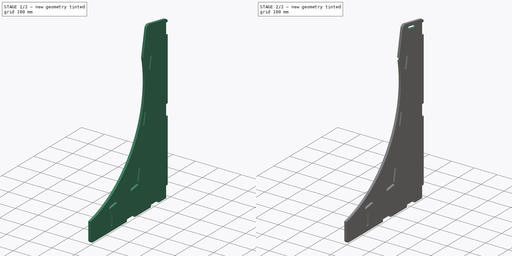
[diagram: build sequence overview — one tinted view per stage of 2, left to right]
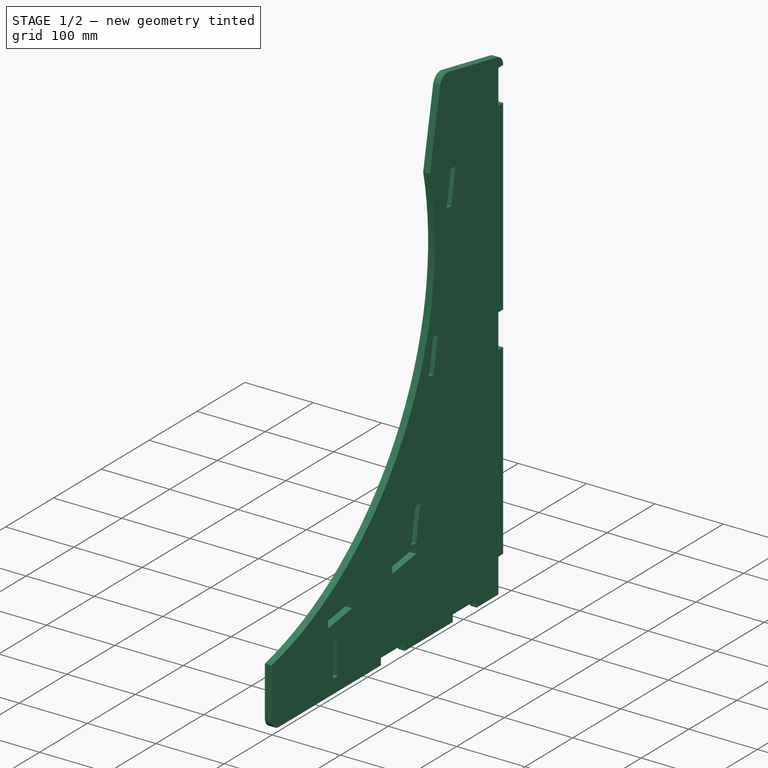
[diagram: stage 1 of 2 — iso view after this stage's code; geometry added in this stage tinted green]
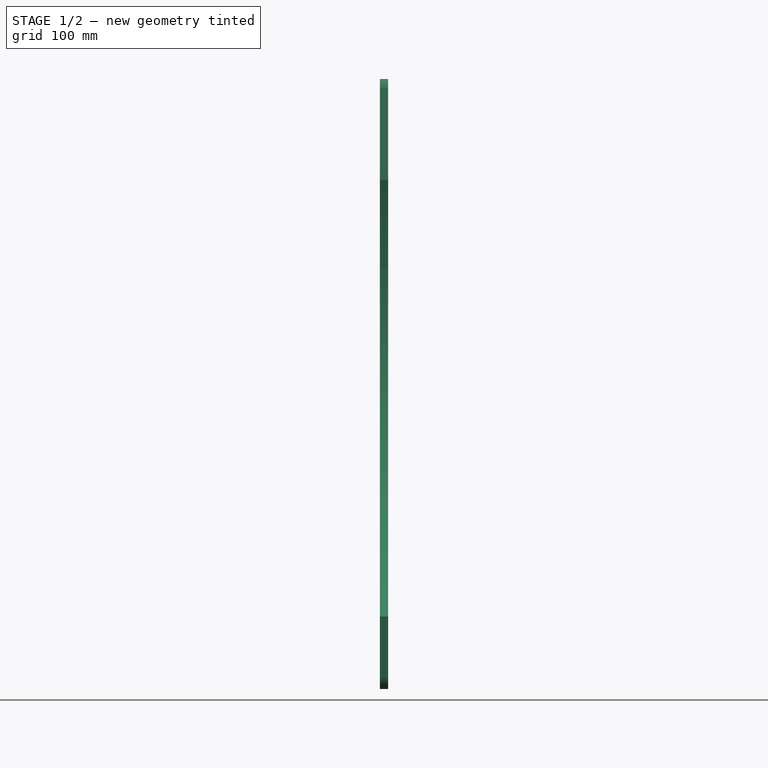
[diagram: stage 1 of 2 — front view after this stage's code; geometry added in this stage tinted green]
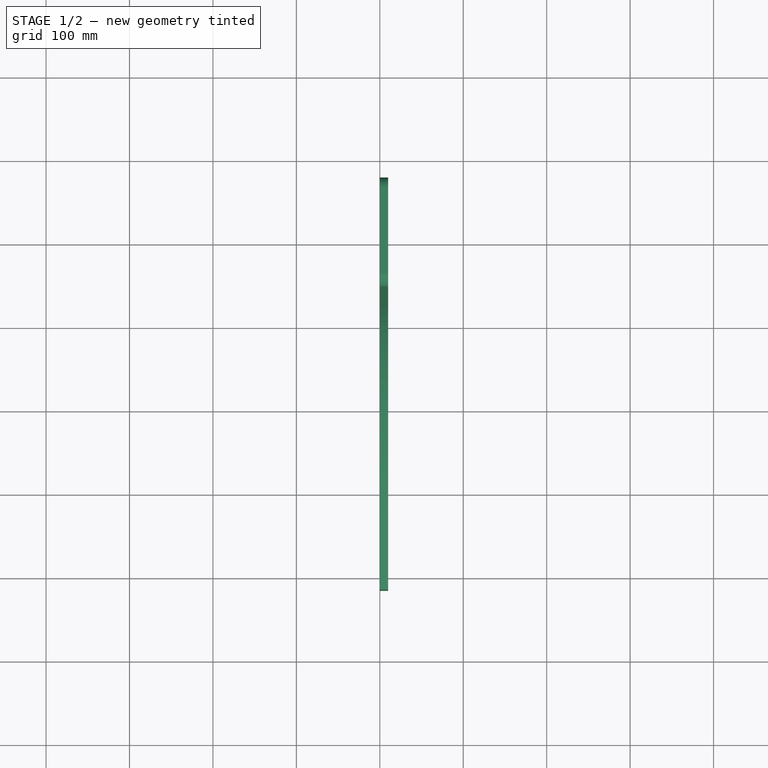
[diagram: stage 1 of 2 — top view after this stage's code; geometry added in this stage tinted green]
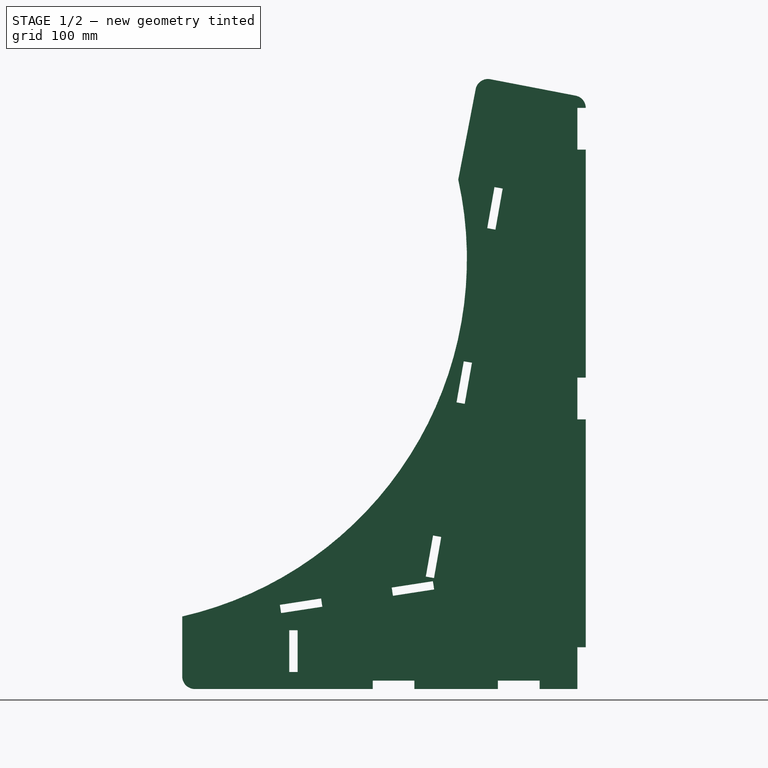
[diagram: stage 1 of 2 — right view after this stage's code; geometry added in this stage tinted green]
FCSTD DOCUMENT  (FreeCAD 0.16R)
Label: panneau_droit
License: All rights reserved
LicenseURL: http://en.wikipedia.org/wiki/All_rights_reserved
objects: Sketcher::SketchObject×3, PartDesign::Pocket×2, PartDesign::Pad×1
note: 9 computed .brp shape members not serialized (recipe doc carries the construction recipe); baked Part::Feature solids carry a one-line shape summary decoded from their .brp

FEATURE [Sketcher::SketchObject] Sketch
  Placement = pos=(0,0,0) rot=(0.57735,0.57735,0.57735;2.0944rad)
  sketch-geometry (19):
    g0: LineSegment StartX=0 StartY=0 StartZ=0 EndX=458.57 EndY=0 EndZ=0
    g1: LineSegment StartX=456.407 StartY=711.13 StartZ=0 EndX=354.229 EndY=730.81 EndZ=0
    g2: LineSegment StartX=336.663 StartY=718.918 StartZ=0 EndX=315.778 EndY=610.481 EndZ=0
    g3: LineSegment StartX=-15 StartY=15 StartZ=0 EndX=-15 EndY=86.92 EndZ=0
    g4: ArcOfCircle CenterX=2e-12 CenterY=15 CenterZ=0 NormalX=0 NormalY=0 NormalZ=1 Radius=15 StartAngle=3.14159 EndAngle=4.71239
    g5: ArcOfCircle CenterX=453.57 CenterY=696.401 CenterZ=0 NormalX=0 NormalY=0 NormalZ=1 Radius=15 StartAngle=0 EndAngle=1.38052
    g6: ArcOfCircle CenterX=351.392 CenterY=716.081 CenterZ=0 NormalX=0 NormalY=0 NormalZ=1 Radius=15 StartAngle=1.38052 EndAngle=2.95132
    g7: ArcOfCircle CenterX=-113.552 CenterY=515.454 CenterZ=0 NormalX=0 NormalY=0 NormalZ=1 Radius=439.72 StartAngle=4.93843 EndAngle=6.50101
    g8: LineSegment [constr] StartX=567.587 StartY=0 StartZ=0 EndX=567.587 EndY=696 EndZ=0
    g9: LineSegment StartX=468.57 StartY=696.401 StartZ=0 EndX=458.57 EndY=696.401 EndZ=0
    g10: LineSegment StartX=458.57 StartY=696.401 StartZ=0 EndX=458.57 EndY=646.401 EndZ=0
    g11: LineSegment StartX=458.57 StartY=646.401 StartZ=0 EndX=468.57 EndY=646.401 EndZ=0
    g12: LineSegment StartX=468.57 StartY=373.2 StartZ=0 EndX=458.57 EndY=373.2 EndZ=0
    g13: LineSegment StartX=458.57 StartY=373.2 StartZ=0 EndX=458.57 EndY=323.2 EndZ=0
    g14: LineSegment StartX=458.57 StartY=323.2 StartZ=0 EndX=468.57 EndY=323.2 EndZ=0
    g15: LineSegment StartX=468.57 StartY=50 StartZ=0 EndX=458.57 EndY=50 EndZ=0
    g16: LineSegment StartX=458.57 StartY=50 StartZ=0 EndX=458.57 EndY=0 EndZ=0
    g17: LineSegment StartX=468.57 StartY=646.401 StartZ=0 EndX=468.57 EndY=373.2 EndZ=0
    g18: LineSegment StartX=468.57 StartY=323.2 StartZ=0 EndX=468.57 EndY=50 EndZ=0
  constraints (56):
    c: Vertical(g3)
    c: Tangent(g0,g4) = -1.5708
    c: Tangent(g3,g4) = 1.5708
    c: Tangent(g1,g5) = -1.5708
    c: Tangent(g1,g6) = -1.5708
    c: Tangent(g2,g6) = -1.5708
    c: DistanceX(g3,g0) = 473.57
    c: Equal(g4,g6)
    c: Equal(g6,g5)
    c: Horizontal(g0)
    c: DistanceY(g0,g1) = 711.13
    c: Distance(g2) = 110.43
    c: Coincident(g7,g2)
    c: Coincident(g7,g3)
    c: Distance(g3) = 71.92
    c: Angle(g2,g1) = 1.5708
    c: Radius(g6) = 15
    c: Coincident(g0,g-1)
    c: DistanceY(g0,g1) = 730.81
    c: PointOnObject(g8,g0)
    c: Vertical(g8)
    c: Distance(g8) = 696
    c: Coincident(g9,g10)
    c: Coincident(g10,g11)
    c: Horizontal(g9)
    c: Horizontal(g11)
    c: Vertical(g10)
    c: Coincident(g9,g5)
    c: Coincident(g12,g13)
    c: Coincident(g13,g14)
    c: Horizontal(g12)
    c: Horizontal(g14)
    c: Vertical(g13)
    c: Coincident(g15,g16)
    c: Horizontal(g15)
    c: Vertical(g16)
    c: Coincident(g16,g0)
    c: Equal(g9,g11)
    c: Equal(g11,g12)
    c: Equal(g12,g14)
    c: Coincident(g17,g11)
    c: Coincident(g17,g12)
    c: Vertical(g17)
    c: Coincident(g18,g14)
    c: Coincident(g18,g15)
    c: Vertical(g18)
    c: Equal(g10,g13)
    c: Equal(g13,g16)
    c: DistanceY(g16,g16) = 50
    c: Equal(g18,g17)
    c: Equal(g15,g14)
    c: Equal(g14,g12)
    c: Equal(g12,g11)
    c: Equal(g11,g9)
    c: Angle(g1,g17) = 1.76107
    c: DistanceX(g9,g9) = 10
FEATURE [PartDesign::Pad] Pad
  Length = 10
  Length2 = 100
  Placement = pos=(0,0,0) rot=(0.57735,0.57735,0.57735;2.0944rad)
  Sketch = -> Sketch
  Type = 0
FEATURE [Sketcher::SketchObject] Sketch001
  Placement = pos=(10,0,0) rot=(0.57735,0.57735,0.57735;2.0944rad)
  Support = -> Pad [Face20]
  sketch-geometry (44):
    g0: GeomPoint [constr] X=318.024 Y=368.131 Z=0
    g1: LineSegment StartX=276.869 StartY=134.731 StartZ=0 EndX=285.552 EndY=183.972 EndZ=0
    g2: LineSegment StartX=285.552 StartY=183.972 StartZ=0 EndX=295.4 EndY=182.235 EndZ=0
    g3: LineSegment StartX=295.4 StartY=182.235 StartZ=0 EndX=286.718 EndY=132.995 EndZ=0
    g4: LineSegment StartX=286.718 StartY=132.995 StartZ=0 EndX=276.869 EndY=134.731 EndZ=0
    g5: LineSegment StartX=313.683 StartY=343.51 StartZ=0 EndX=322.365 EndY=392.751 EndZ=0
    g6: LineSegment StartX=322.365 StartY=392.751 StartZ=0 EndX=332.213 EndY=391.014 EndZ=0
    g7: LineSegment StartX=332.213 StartY=391.014 StartZ=0 EndX=323.531 EndY=341.774 EndZ=0
    g8: LineSegment StartX=323.531 StartY=341.774 StartZ=0 EndX=313.683 EndY=343.51 EndZ=0
    g9: LineSegment StartX=359.179 StartY=601.53 StartZ=0 EndX=350.496 EndY=552.29 EndZ=0
    g10: LineSegment StartX=350.496 StartY=552.29 StartZ=0 EndX=360.344 EndY=550.553 EndZ=0
    g11: LineSegment StartX=360.344 StartY=550.553 StartZ=0 EndX=369.027 EndY=599.794 EndZ=0
    g12: LineSegment StartX=369.027 StartY=599.794 StartZ=0 EndX=359.179 EndY=601.53 EndZ=0
    g13: LineSegment [constr] StartX=276.869 StartY=134.731 StartZ=0 EndX=359.179 EndY=601.53 EndZ=0
    g14: GeomPoint [constr] X=318.024 Y=368.131 Z=0
    g15: LineSegment [constr] StartX=318.024 StartY=368.131 StartZ=0 EndX=318.024 EndY=0 EndZ=0
    g16: GeomPoint [constr] X=318.024 Y=368.131 Z=0
    g17: LineSegment StartX=101.965 StartY=100.868 StartZ=0 EndX=151.379 EndY=108.5 EndZ=0
    g18: LineSegment StartX=151.379 StartY=108.5 StartZ=0 EndX=152.906 EndY=98.6168 EndZ=0
    g19: LineSegment StartX=152.906 StartY=98.6168 StartZ=0 EndX=103.491 EndY=90.985 EndZ=0
    g20: LineSegment StartX=103.491 StartY=90.985 StartZ=0 EndX=101.965 EndY=100.868 EndZ=0
    g21: LineSegment StartX=235.976 StartY=121.565 StartZ=0 EndX=285.39 EndY=129.197 EndZ=0
    g22: LineSegment StartX=285.39 StartY=129.197 StartZ=0 EndX=286.917 EndY=119.314 EndZ=0
    g23: LineSegment StartX=286.917 StartY=119.314 StartZ=0 EndX=237.503 EndY=111.682 EndZ=0
    g24: LineSegment StartX=237.503 StartY=111.682 StartZ=0 EndX=235.976 EndY=121.565 EndZ=0
    g25: LineSegment [constr] StartX=101.965 StartY=100.868 StartZ=0 EndX=285.39 EndY=129.197 EndZ=0
    g26: GeomPoint [constr] X=193.678 Y=115.032 Z=0
    g27: LineSegment [constr] StartX=193.678 StartY=115.032 StartZ=0 EndX=193.678 EndY=0 EndZ=0
    g28: LineSegment [constr] StartX=113.247 StartY=90.7 StartZ=0 EndX=113.247 EndY=0 EndZ=0
    g29: LineSegment StartX=113.247 StartY=20.35 StartZ=0 EndX=113.247 EndY=70.35 EndZ=0
    g30: LineSegment StartX=113.247 StartY=70.35 StartZ=0 EndX=123.247 EndY=70.35 EndZ=0
    g31: LineSegment StartX=123.247 StartY=70.35 StartZ=0 EndX=123.247 EndY=20.35 EndZ=0
    g32: LineSegment StartX=123.247 StartY=20.35 StartZ=0 EndX=113.247 EndY=20.35 EndZ=0
    g33: GeomPoint [constr] X=113.247 Y=45.35 Z=0
    g34: GeomPoint [constr] X=113.247 Y=45.35 Z=0
    g35: LineSegment [constr] StartX=113.247 StartY=90.7 StartZ=0 EndX=123.247 EndY=90.7 EndZ=0
    g36: LineSegment StartX=213.247 StartY=0 StartZ=0 EndX=263.247 EndY=0 EndZ=0
    g37: LineSegment StartX=263.247 StartY=0 StartZ=0 EndX=263.247 EndY=10 EndZ=0
    g38: LineSegment StartX=263.247 StartY=10 StartZ=0 EndX=213.247 EndY=10 EndZ=0
    g39: LineSegment StartX=213.247 StartY=10 StartZ=0 EndX=213.247 EndY=0 EndZ=0
    g40: LineSegment StartX=363.247 StartY=0 StartZ=0 EndX=413.247 EndY=0 EndZ=0
    g41: LineSegment StartX=413.247 StartY=0 StartZ=0 EndX=413.247 EndY=10 EndZ=0
    g42: LineSegment StartX=413.247 StartY=10 StartZ=0 EndX=363.247 EndY=10 EndZ=0
    g43: LineSegment StartX=363.247 StartY=10 StartZ=0 EndX=363.247 EndY=0 EndZ=0
  constraints (118):
    c: Symmetric(g1,g9,g0)
    c: Coincident(g1,g2)
    c: Coincident(g2,g3)
    c: Coincident(g3,g4)
    c: Coincident(g4,g1)
    c: Coincident(g5,g6)
    c: Coincident(g6,g7)
    c: Coincident(g7,g8)
    c: Coincident(g8,g5)
    c: Coincident(g9,g10)
    c: Coincident(g10,g11)
    c: Coincident(g11,g12)
    c: Coincident(g12,g9)
    c: Coincident(g13,g1)
    c: Coincident(g13,g9)
    c: Coincident(g0,g14)
    c: Equal(g3,g7)
    c: Equal(g7,g11)
    c: Equal(g11,g9)
    c: Equal(g9,g5)
    c: Equal(g5,g1)
    c: Equal(g4,g2)
    c: Equal(g2,g8)
    c: Equal(g8,g6)
    c: Equal(g6,g10)
    c: Equal(g10,g12)
    c: Coincident(g15,g0)
    c: PointOnObject(g15,g-1)
    c: Vertical(g15)
    c: Perpendicular(g1,g4)
    c: Perpendicular(g5,g8)
    c: Perpendicular(g9,g10)
    c: PointOnObject(g1,g13)
    c: PointOnObject(g5,g13)
    c: PointOnObject(g9,g13)
    c: Angle(g13,g15) = 0.174533
    c: Distance(g13) = 474
    c: Symmetric(g5,g5,g16)
    c: Coincident(g16,g0)
    c: Distance(g12) = 10
    c: Distance(g11) = 50
    c: Coincident(g17,g18)
    c: Coincident(g18,g19)
    c: Coincident(g19,g20)
    c: Coincident(g20,g17)
    c: Coincident(g21,g22)
    c: Coincident(g22,g23)
    c: Coincident(g23,g24)
    c: Coincident(g24,g21)
    c: Equal(g20,g18)
    c: Equal(g18,g24)
    c: Equal(g24,g22)
    c: Equal(g22,g4)
    c: Equal(g17,g19)
    c: Equal(g19,g23)
    c: Equal(g23,g21)
    c: Equal(g21,g1)
    c: Distance(g17,g21) = 185.6
    c: Coincident(g25,g17)
    c: Coincident(g25,g21)
    c: PointOnObject(g26,g25)
    c: Symmetric(g25,g25,g26)
    c: Coincident(g27,g26)
    c: PointOnObject(g27,g-1)
    c: Vertical(g27)
    c: PointOnObject(g17,g25)
    c: Perpendicular(g17,g20)
    c: Perpendicular(g21,g22)
    c: PointOnObject(g21,g25)
    c: Distance(g28) = 90.7
    c: Coincident(g29,g30)
    c: Coincident(g30,g31)
    c: Coincident(g31,g32)
    c: Coincident(g32,g29)
    c: Perpendicular(g30,g29)
    c: Equal(g32,g30)
    c: Equal(g30,g20)
    c: Equal(g29,g31)
    c: Equal(g31,g17)
    c: PointOnObject(g33,g29)
    c: Symmetric(g29,g29,g33)
    c: PointOnObject(g34,g28)
    c: Symmetric(g28,g28,g34)
    c: Coincident(g34,g33)
    c: PointOnObject(g29,g28)
    c: Vertical(g28)
    c: Coincident(g35,g28)
    c: Horizontal(g35)
    c: Equal(g35,g20)
    c: PointOnObject(g28,g-1)
    c: Coincident(g36,g37)
    c: Coincident(g37,g38)
    c: Coincident(g38,g39)
    c: Coincident(g39,g36)
    c: Horizontal(g36)
    c: Horizontal(g38)
    c: Vertical(g37)
    c: Vertical(g39)
    c: PointOnObject(g36,g-1)
    c: Equal(g36,g38)
    c: Equal(g38,g23)
    c: Equal(g39,g37)
    c: Equal(g37,g32)
    c: Coincident(g40,g41)
    c: Coincident(g41,g42)
    c: Coincident(g42,g43)
    c: Coincident(g43,g40)
    c: Horizontal(g40)
    c: Horizontal(g42)
    c: Vertical(g41)
    c: Vertical(g43)
    c: PointOnObject(g40,g-1)
    c: Equal(g37,g43)
    c: Equal(g43,g41)
    c: Equal(g42,g38)
    c: DistanceX(g36,g40) = 100
    c: DistanceX(g31,g36) = 90
    c: DistanceX(g-1,g28) = 113.247
FEATURE [PartDesign::Pocket] Pocket
  Length = 5
  Placement = pos=(0,0,0) rot=(0.57735,0.57735,0.57735;2.0944rad)
  Sketch = -> Sketch001
  Type = 1
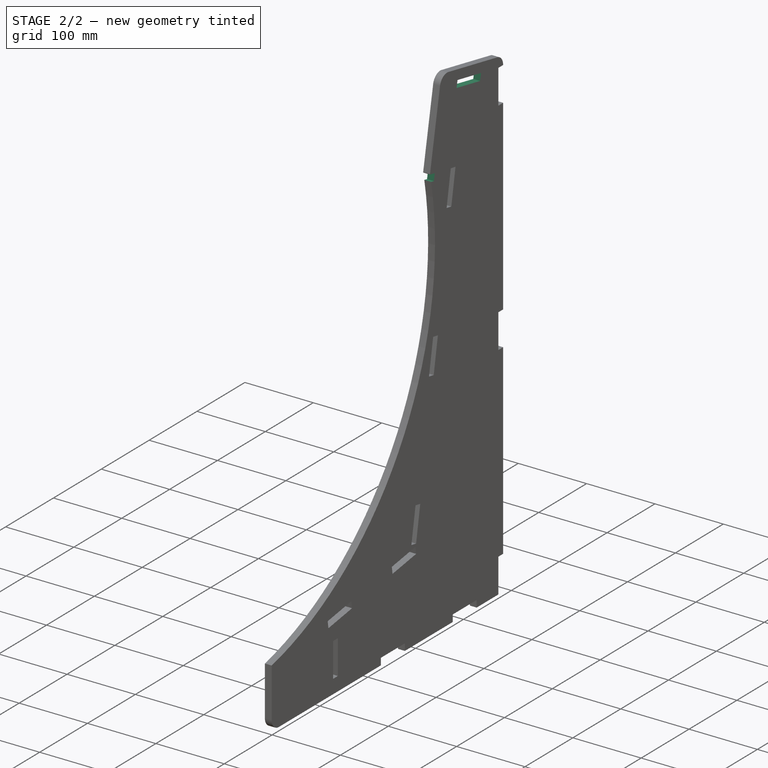
[diagram: stage 2 of 2 — iso view after this stage's code; geometry added in this stage tinted green]
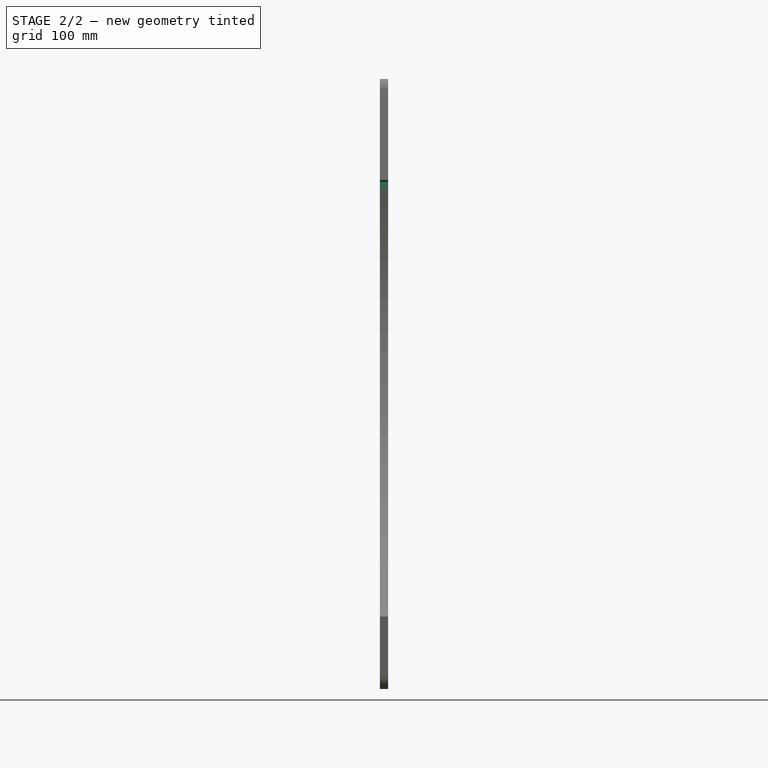
[diagram: stage 2 of 2 — front view after this stage's code; geometry added in this stage tinted green]
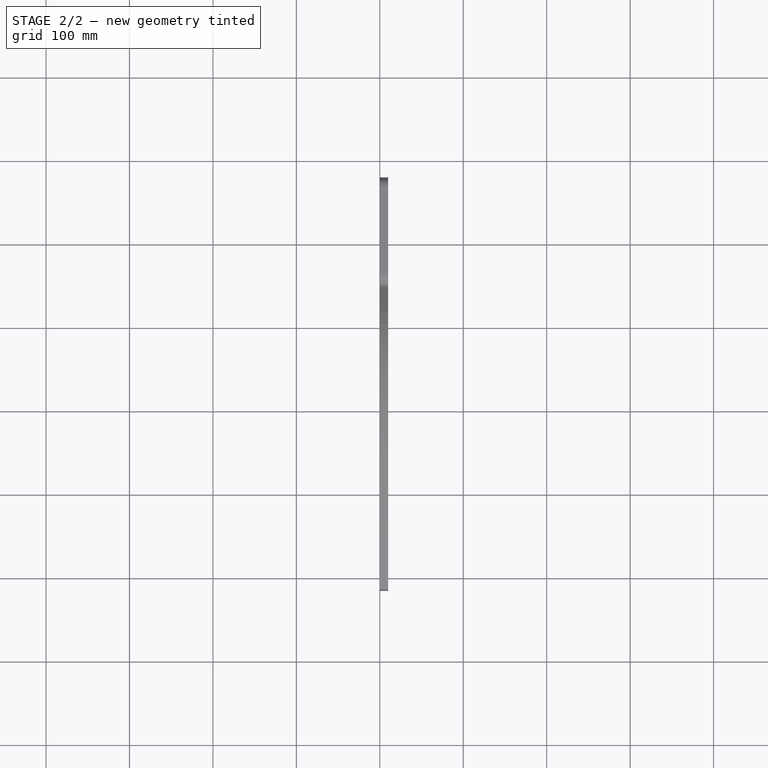
[diagram: stage 2 of 2 — top view after this stage's code; geometry added in this stage tinted green]
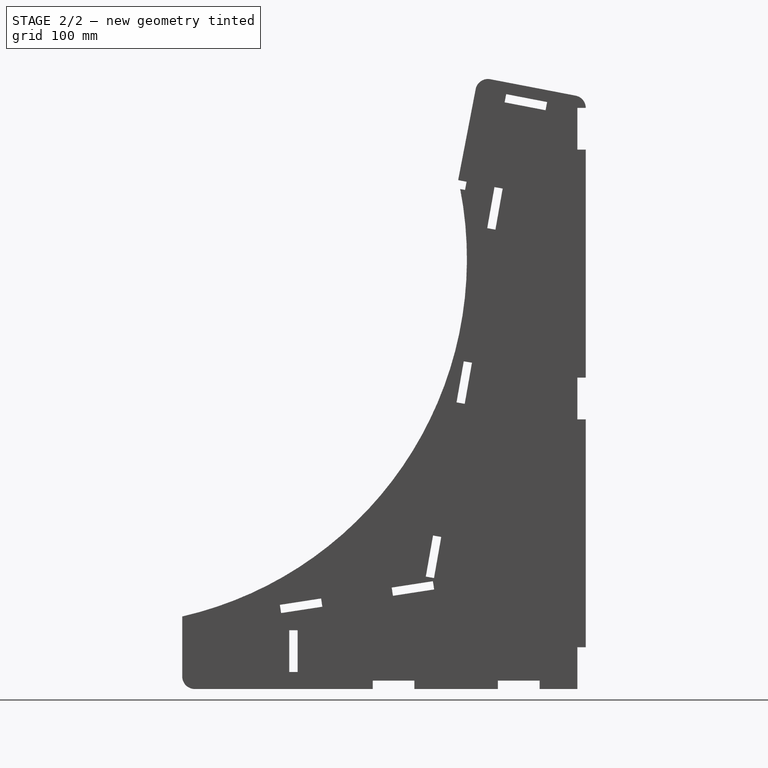
[diagram: stage 2 of 2 — right view after this stage's code; geometry added in this stage tinted green]
FEATURE [Sketcher::SketchObject] Sketch002
  ExternalGeometry = -> [Pocket]
  Placement = pos=(10,0,0) rot=(0.57735,0.57735,0.57735;2.0944rad)
  Support = -> Pocket [Face5]
  sketch-geometry (10):
    g0: LineSegment [constr] StartX=424.954 StartY=717.188 StartZ=0 EndX=422.31 EndY=703.464 EndZ=0
    g1: LineSegment StartX=422.31 StartY=703.464 StartZ=0 EndX=373.213 EndY=712.92 EndZ=0
    g2: LineSegment StartX=373.213 StartY=712.92 StartZ=0 EndX=371.322 EndY=703.101 EndZ=0
    g3: LineSegment StartX=371.322 StartY=703.101 StartZ=0 EndX=420.419 EndY=693.644 EndZ=0
    g4: LineSegment StartX=420.419 StartY=693.644 StartZ=0 EndX=422.31 EndY=703.464 EndZ=0
    g5: LineSegment StartX=315.966 StartY=609.813 StartZ=0 EndX=325.785 EndY=607.922 EndZ=0
    g6: LineSegment StartX=325.785 StartY=607.922 StartZ=0 EndX=323.894 EndY=598.102 EndZ=0
    g7: LineSegment StartX=323.894 StartY=598.102 StartZ=0 EndX=314.074 EndY=599.993 EndZ=0
    g8: LineSegment StartX=314.074 StartY=599.993 StartZ=0 EndX=315.966 EndY=609.813 EndZ=0
    g9: LineSegment [constr] StartX=315.966 StartY=609.813 StartZ=0 EndX=342.132 EndY=609.813 EndZ=0
  constraints (28):
    c: PointOnObject(g0,g-3)
    c: Perpendicular(g-3,g0)
    c: Coincident(g1,g2)
    c: Coincident(g2,g3)
    c: Coincident(g3,g4)
    c: Coincident(g4,g1)
    c: Coincident(g1,g0)
    c: Perpendicular(g4,g3)
    c: Perpendicular(g1,g2)
    c: Distance(g1) = 50
    c: Distance(g2) = 10
    c: Perpendicular(g0,g1)
    c: Equal(g4,g2)
    c: Distance(g0) = 13.9767
    c: Distance(g0,g-4) = 36.941
    c: Coincident(g5,g6)
    c: Coincident(g6,g7)
    c: Coincident(g7,g8)
    c: Coincident(g8,g5)
    c: Equal(g6,g2)
    c: DistanceY(g5,g-3) = 120.997
    c: Equal(g7,g8)
    c: Perpendicular(g8,g7)
    c: Perpendicular(g6,g5)
    c: Perpendicular(g8,g5)
    c: Coincident(g9,g5)
    c: Horizontal(g9)
    c: Angle(g5,g9) = 0.190276
FEATURE [PartDesign::Pocket] Pocket001
  Length = 5
  Placement = pos=(0,0,0) rot=(0.57735,0.57735,0.57735;2.0944rad)
  Sketch = -> Sketch002
  Type = 1
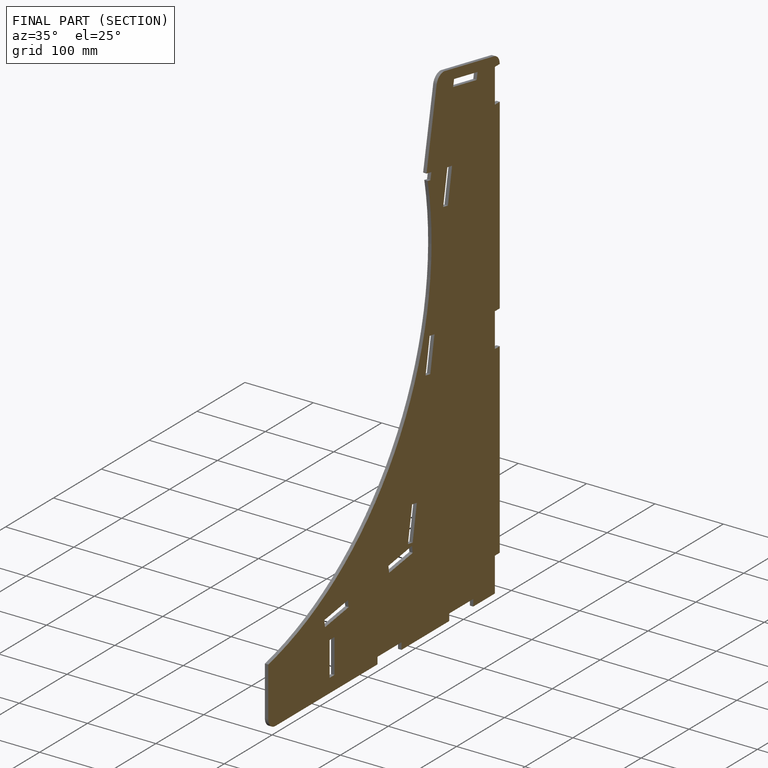
[diagram: finished part — half-section view (interior)]
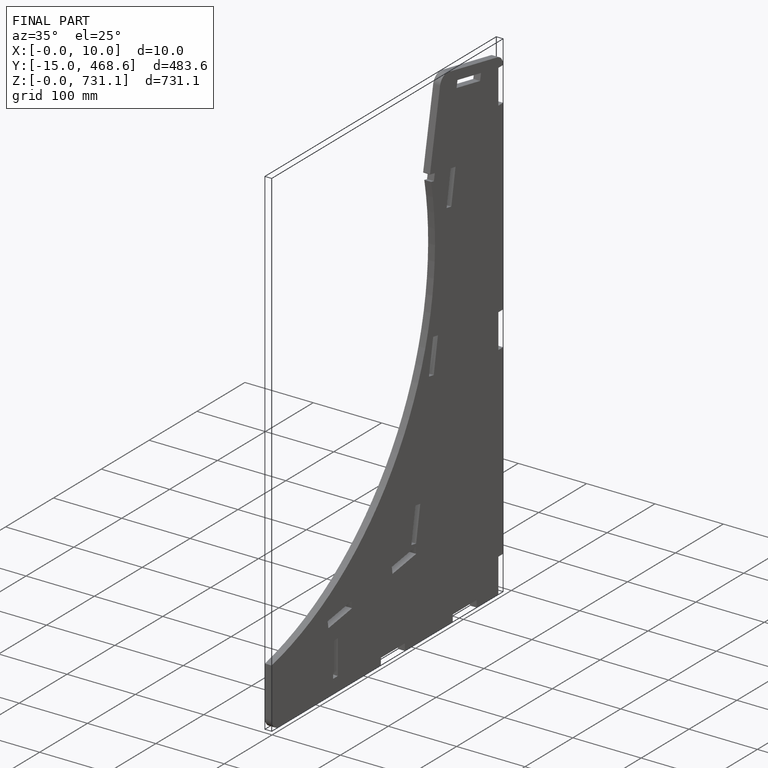
[diagram: finished part — iso view with bounding-box wireframe]
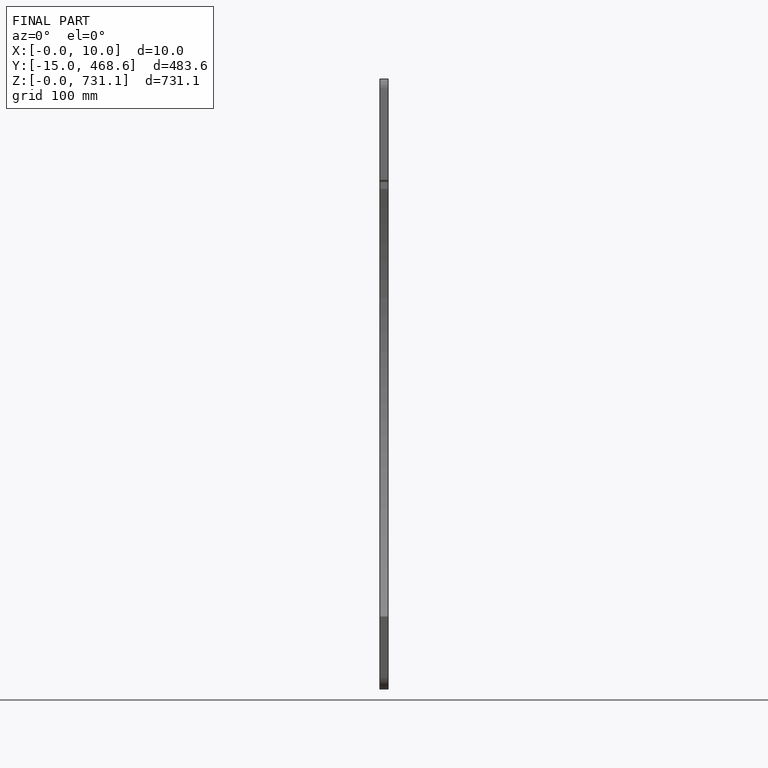
[diagram: finished part — front view with bounding-box wireframe]
